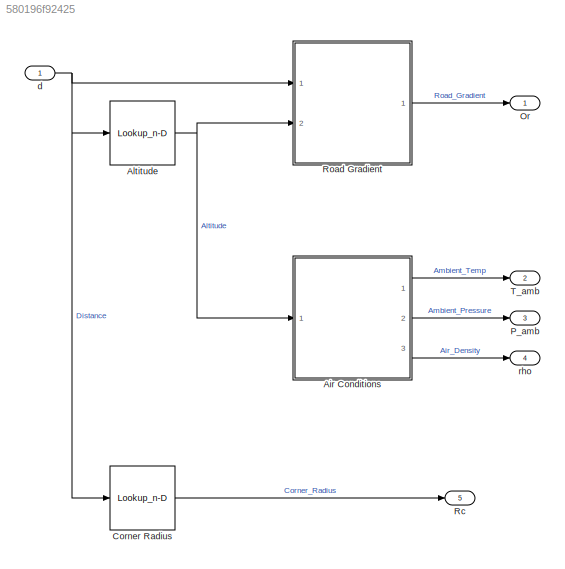
MODEL slx_580196f92425
KIND model
WORKSPACE source: MATLAB code (in-file)
WORKSPACE code: switch(Env)
WORKSPACE code: case 'Pikes Peak'
WORKSPACE code: load Evn_Pikes_Peak;
WORKSPACE code: case 'IOM'
WORKSPACE code: load Evn_IOM;
WORKSPACE code: otherwise
WORKSPACE code: load Environment
WORKSPACE code: end
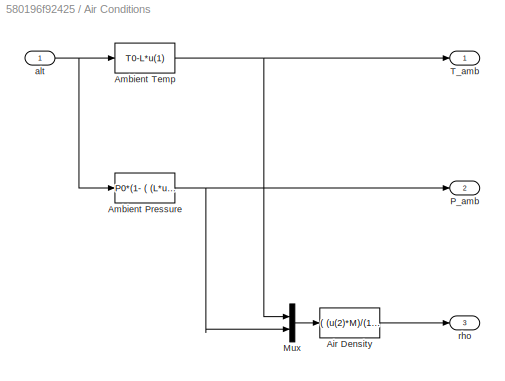
BLOCK [SubSystem] Air Conditions
  Ports = [1, 3]
  RequestExecContextInheritance = off
BLOCK [Fcn] Air Conditions/Air Density
  Expr = ( (u(2)*M)/(1000*R*u(1)) )
BLOCK [Fcn] Air Conditions/Ambient Pressure
  Expr = P0*(1- ( (L*u(1))/(T0) ) )^( (g*M) / (R*L*1000) )
BLOCK [Fcn] Air Conditions/Ambient Temp
  Expr = T0-L*u(1)
BLOCK [Mux] Air Conditions/Mux
  DisplayOption = bar
  Inputs = 2
  Ports = [2, 1]
BLOCK [Outport] Air Conditions/P_amb
  IconDisplay = Port number
  Port = 2
BLOCK [Outport] Air Conditions/T_amb 
  IconDisplay = Port number
BLOCK [Inport] Air Conditions/alt
  IconDisplay = Port number
BLOCK [Outport] Air Conditions/rho
  IconDisplay = Port number
  Port = 3
BLOCK [Lookup_n-D] Altitude
  BreakpointsForDimension1 = altx
  DiagnosticForOutOfRangeInput = Warning
  ExtrapMethod = Clip
  NumberOfTableDimensions = 1
  Ports = [1, 1]
  RndMeth = Simplest
  Table = alty
  UseLastTableValue = on
BLOCK [Lookup_n-D] Corner Radius
  BreakpointsForDimension1 = Rcx
  DiagnosticForOutOfRangeInput = Warning
  ExtrapMethod = Clip
  NumberOfTableDimensions = 1
  Ports = [1, 1]
  RndMeth = Simplest
  Table = Rcy
  UseLastTableValue = on
BLOCK [Outport] Or
  IconDisplay = Port number
BLOCK [Outport] P_amb
  IconDisplay = Port number
  Port = 3
BLOCK [Outport] Rc
  IconDisplay = Port number
  Port = 5
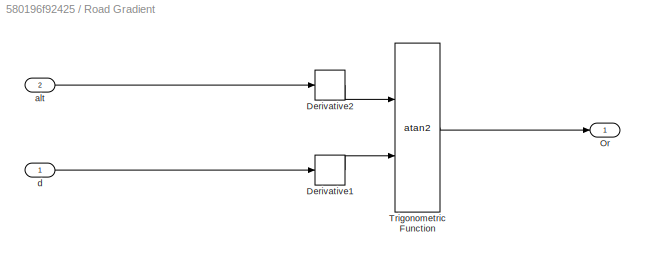
BLOCK [SubSystem] Road Gradient
  Ports = [2, 1]
  RequestExecContextInheritance = off
BLOCK [Derivative] Road Gradient/Derivative1
BLOCK [Derivative] Road Gradient/Derivative2
BLOCK [Outport] Road Gradient/Or
  IconDisplay = Port number
BLOCK [Trigonometry] Road Gradient/Trigonometric Function
  Operator = atan2
  Ports = [2, 1]
BLOCK [Inport] Road Gradient/alt
  IconDisplay = Port number
  Port = 2
BLOCK [Inport] Road Gradient/d
  IconDisplay = Port number
BLOCK [Outport] T_amb
  IconDisplay = Port number
  Port = 2
BLOCK [Inport] d
  IconDisplay = Port number
BLOCK [Outport] rho
  IconDisplay = Port number
  Port = 4
LINE Air Conditions/Air Density:1 -> Air Conditions/rho:1
NET Air Conditions/Ambient Pressure:1 -> Air Conditions/Mux:2, Air Conditions/P_amb:1
NET Air Conditions/Ambient Temp:1 -> Air Conditions/Mux:1, Air Conditions/T_amb :1
LINE Air Conditions/Mux:1 -> Air Conditions/Air Density:1
NET Air Conditions/alt:1 -> Air Conditions/Ambient Pressure:1, Air Conditions/Ambient Temp:1
LINE Air Conditions:1 -> T_amb:1
LINE Air Conditions:2 -> P_amb:1
LINE Air Conditions:3 -> rho:1
NET Altitude:1 -> Air Conditions:1, Road Gradient:2
LINE Corner Radius:1 -> Rc:1
LINE Road Gradient/Derivative1:1 -> Road Gradient/Trigonometric Function:2
LINE Road Gradient/Derivative2:1 -> Road Gradient/Trigonometric Function:1
LINE Road Gradient/Trigonometric Function:1 -> Road Gradient/Or:1
LINE Road Gradient/alt:1 -> Road Gradient/Derivative2:1
LINE Road Gradient/d:1 -> Road Gradient/Derivative1:1
LINE Road Gradient:1 -> Or:1
NET d:1 -> Altitude:1, Corner Radius:1, Road Gradient:1
note: NET lines group one-source signal fan-out (src -> all destinations, sorted); 1:1 wires keep LINE
